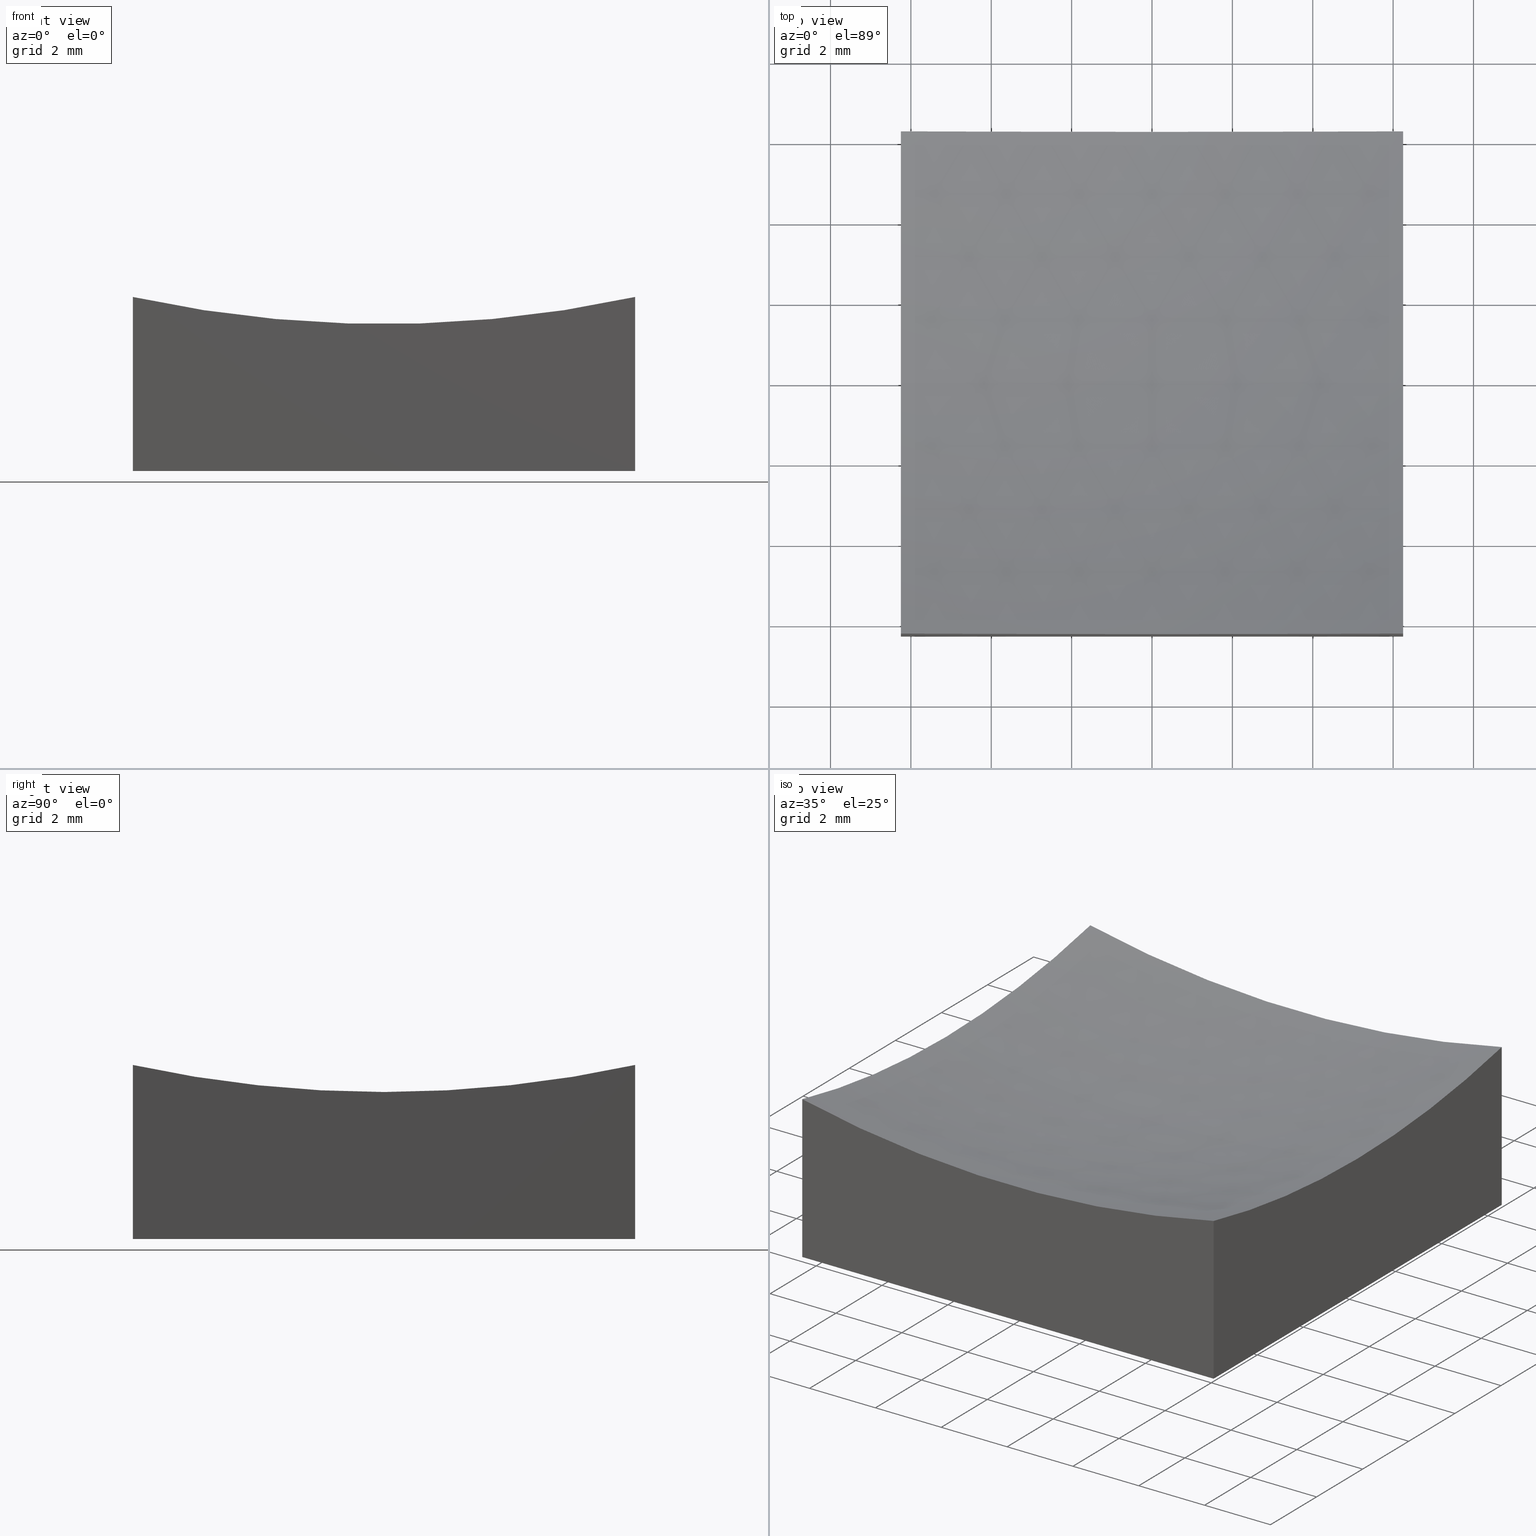
[diagram: canonical four-view strip — front | top / right | iso, engineering-drawing reading convention]
A machine part, canonical four-view strip (front | top / right | iso — engineering-drawing reading convention). The complete STEP part file that produces these views, byte-faithful:
ISO-10303-21;
HEADER;
FILE_DESCRIPTION (( 'STEP AP214' ),
    '1' );
FILE_NAME ('270012.STEP',
    '2020-06-01T08:23:23',
    ( '' ),
    ( '' ),
    'SwSTEP 2.0',
    'SolidWorks 2019',
    '' );
FILE_SCHEMA (( 'AUTOMOTIVE_DESIGN' ));
ENDSEC;

DATA;
#1 = DIRECTION ( 'NONE',  ( 0.0000000000000000000, 0.0000000000000000000, -1.000000000000000000 ) ) ;
#2 = EDGE_CURVE ( 'NONE', #167, #229, #179, .T. ) ;
#3 = DIRECTION ( 'NONE',  ( 1.000000000000000000, 0.0000000000000000000, 0.0000000000000000000 ) ) ;
#4 = APPLICATION_PROTOCOL_DEFINITION ( 'draft international standard', 'automotive_design', 1998, #97 ) ;
#5 = AXIS2_PLACEMENT_3D ( 'NONE', #204, #29, #31 ) ;
#6 = VERTEX_POINT ( 'NONE', #169 ) ;
#7 = ORIENTED_EDGE ( 'NONE', *, *, #115, .T. ) ;
#8 = EDGE_CURVE ( 'NONE', #167, #225, #51, .T. ) ;
#9 = CARTESIAN_POINT ( 'NONE',  ( -6.250000000000000000, 0.0000000000000000000, 33.00000000000000000 ) ) ;
#10 = CIRCLE ( 'NONE', #32, 30.00000000000000000 ) ;
#11 = CARTESIAN_POINT ( 'NONE',  ( -6.250000000000000000, 6.250000000000000888, 4.331637647050714079 ) ) ;
#12 = LINE ( 'NONE', #85, #96 ) ;
#13 = LINE ( 'NONE', #120, #200 ) ;
#14 = ORIENTED_EDGE ( 'NONE', *, *, #78, .T. ) ;
#15 = DIRECTION ( 'NONE',  ( 1.000000000000000000, 0.0000000000000000000, -0.0000000000000000000 ) ) ;
#16 =( NAMED_UNIT ( * ) PLANE_ANGLE_UNIT ( ) SI_UNIT ( $, .RADIAN. ) );
#17 = CARTESIAN_POINT ( 'NONE',  ( 6.250000000000000000, 6.250000000000000888, 10.00000000000000000 ) ) ;
#18 = FILL_AREA_STYLE_COLOUR ( '', #136 ) ;
#19 = EDGE_CURVE ( 'NONE', #243, #162, #12, .T. ) ;
#20 = AXIS2_PLACEMENT_3D ( 'NONE', #250, #109, #92 ) ;
#21 = VECTOR ( 'NONE', #231, 1000.000000000000000 ) ;
#22 = FACE_OUTER_BOUND ( 'NONE', #227, .T. ) ;
#23 = PRODUCT_CONTEXT ( 'NONE', #156, 'mechanical' ) ;
#24 = AXIS2_PLACEMENT_3D ( 'NONE', #91, #134, #214 ) ;
#25 = SURFACE_SIDE_STYLE ('',( #52 ) ) ;
#26 = AXIS2_PLACEMENT_3D ( 'NONE', #218, #199, #77 ) ;
#27 = ORIENTED_EDGE ( 'NONE', *, *, #224, .T. ) ;
#28 = STYLED_ITEM ( 'NONE', ( #159 ), #157 ) ;
#29 = DIRECTION ( 'NONE',  ( 1.000000000000000000, 0.0000000000000000000, -0.0000000000000000000 ) ) ;
#30 = ORIENTED_EDGE ( 'NONE', *, *, #57, .F. ) ;
#31 = DIRECTION ( 'NONE',  ( -0.0000000000000000000, 0.0000000000000000000, -1.000000000000000000 ) ) ;
#32 = AXIS2_PLACEMENT_3D ( 'NONE', #108, #198, #55 ) ;
#33 = CARTESIAN_POINT ( 'NONE',  ( -6.250000000000000000, -6.250000000000000888, 0.0000000000000000000 ) ) ;
#34 = AXIS2_PLACEMENT_3D ( 'NONE', #193, #15, #232 ) ;
#35 = COLOUR_RGB ( '',1.000000000000000000, 1.000000000000000000, 1.000000000000000000 ) ;
#36 = FACE_OUTER_BOUND ( 'NONE', #208, .T. ) ;
#37 = ORIENTED_EDGE ( 'NONE', *, *, #57, .T. ) ;
#38 = LINE ( 'NONE', #75, #116 ) ;
#39 = PRODUCT_DEFINITION ( 'δ֪', '', #123, #61 ) ;
#40 = CARTESIAN_POINT ( 'NONE',  ( 6.250000000000000000, 0.0000000000000000000, 33.00000000000000000 ) ) ;
#41 = CARTESIAN_POINT ( 'NONE',  ( -6.250000000000000000, 0.0000000000000000000, 33.00000000000000000 ) ) ;
#42 = CLOSED_SHELL ( 'NONE', ( #65, #119, #161, #164, #103, #45, #58 ) ) ;
#43 = AXIS2_PLACEMENT_3D ( 'NONE', #146, #211, #56 ) ;
#44 = VECTOR ( 'NONE', #187, 1000.000000000000000 ) ;
#45 = ADVANCED_FACE ( 'NONE', ( #245 ), #68, .T. ) ;
#46 = ADVANCED_BREP_SHAPE_REPRESENTATION ( '270012', ( #157, #236 ), #249 ) ;
#47 = SURFACE_SIDE_STYLE ('',( #147 ) ) ;
#48 = DIRECTION ( 'NONE',  ( 1.000000000000000000, 0.0000000000000000000, 0.0000000000000000000 ) ) ;
#49 = PRESENTATION_STYLE_ASSIGNMENT (( #226 ) ) ;
#50 = SPHERICAL_SURFACE ( 'NONE', #26, 30.00000000000000000 ) ;
#51 = LINE ( 'NONE', #17, #215 ) ;
#52 = SURFACE_STYLE_FILL_AREA ( #230 ) ;
#53 = DIRECTION ( 'NONE',  ( -0.0000000000000000000, 1.000000000000000000, 0.0000000000000000000 ) ) ;
#54 = AXIS2_PLACEMENT_3D ( 'NONE', #69, #110, #172 ) ;
#55 = DIRECTION ( 'NONE',  ( 0.0000000000000000000, 0.0000000000000000000, -1.000000000000000000 ) ) ;
#56 = DIRECTION ( 'NONE',  ( -0.0000000000000000000, 0.0000000000000000000, -1.000000000000000000 ) ) ;
#57 = EDGE_CURVE ( 'NONE', #243, #225, #135, .T. ) ;
#58 = ADVANCED_FACE ( 'NONE', ( #234 ), #217, .F. ) ;
#59 = VECTOR ( 'NONE', #246, 1000.000000000000000 ) ;
#60 = ORIENTED_EDGE ( 'NONE', *, *, #133, .T. ) ;
#61 = PRODUCT_DEFINITION_CONTEXT ( 'detailed design', #97, 'design' ) ;
#62 = ORIENTED_EDGE ( 'NONE', *, *, #115, .F. ) ;
#63 = UNCERTAINTY_MEASURE_WITH_UNIT (LENGTH_MEASURE( 1.000000000000000082E-05 ), #202, 'distance_accuracy_value', 'NONE');
#64 = APPLICATION_PROTOCOL_DEFINITION ( 'draft international standard', 'automotive_design', 1998, #156 ) ;
#65 = ADVANCED_FACE ( 'NONE', ( #22 ), #50, .F. ) ;
#66 = ORIENTED_EDGE ( 'NONE', *, *, #83, .T. ) ;
#67 =( NAMED_UNIT ( * ) SI_UNIT ( $, .STERADIAN. ) SOLID_ANGLE_UNIT ( ) );
#68 = PLANE ( 'NONE',  #24 ) ;
#69 = CARTESIAN_POINT ( 'NONE',  ( 4.041334437186266200E-15, 0.0000000000000000000, 33.00000000000000000 ) ) ;
#70 = CARTESIAN_POINT ( 'NONE',  ( 6.250000000000000000, 6.250000000000000888, 0.0000000000000000000 ) ) ;
#71 = ORIENTED_EDGE ( 'NONE', *, *, #174, .F. ) ;
#72 = DIRECTION ( 'NONE',  ( -0.0000000000000000000, -0.0000000000000000000, -1.000000000000000000 ) ) ;
#73 = DIRECTION ( 'NONE',  ( 1.000000000000000000, 0.0000000000000000000, -0.0000000000000000000 ) ) ;
#74 = EDGE_LOOP ( 'NONE', ( #80, #14, #221, #143, #248 ) ) ;
#75 = CARTESIAN_POINT ( 'NONE',  ( 6.250000000000000000, -6.250000000000000888, 10.00000000000000000 ) ) ;
#76 = DIRECTION ( 'NONE',  ( 0.0000000000000000000, 1.000000000000000000, 0.0000000000000000000 ) ) ;
#77 = DIRECTION ( 'NONE',  ( 1.000000000000000000, 0.0000000000000000000, 0.0000000000000000000 ) ) ;
#78 = EDGE_CURVE ( 'NONE', #121, #105, #38, .T. ) ;
#79 = VECTOR ( 'NONE', #175, 1000.000000000000000 ) ;
#80 = ORIENTED_EDGE ( 'NONE', *, *, #133, .F. ) ;
#81 = CIRCLE ( 'NONE', #90, 29.34173648576375726 ) ;
#82 = EDGE_CURVE ( 'NONE', #184, #244, #10, .T. ) ;
#83 = EDGE_CURVE ( 'NONE', #6, #162, #127, .T. ) ;
#84 = ORIENTED_EDGE ( 'NONE', *, *, #224, .F. ) ;
#85 = CARTESIAN_POINT ( 'NONE',  ( -6.250000000000000000, 6.250000000000000888, 0.0000000000000000000 ) ) ;
#86 = CARTESIAN_POINT ( 'NONE',  ( 6.250000000000000000, 6.250000000000000888, 0.0000000000000000000 ) ) ;
#87 = VERTEX_POINT ( 'NONE', #151 ) ;
#88 = DIRECTION ( 'NONE',  ( 1.000000000000000000, 0.0000000000000000000, -0.0000000000000000000 ) ) ;
#89 = CARTESIAN_POINT ( 'NONE',  ( -6.250000000000000000, 6.250000000000000888, 10.00000000000000000 ) ) ;
#90 = AXIS2_PLACEMENT_3D ( 'NONE', #41, #252, #1 ) ;
#91 = CARTESIAN_POINT ( 'NONE',  ( 0.0000000000000000000, 0.0000000000000000000, 0.0000000000000000000 ) ) ;
#92 = DIRECTION ( 'NONE',  ( 0.0000000000000000000, 0.0000000000000000000, 1.000000000000000000 ) ) ;
#93 = CARTESIAN_POINT ( 'NONE',  ( -6.250000000000000000, 6.250000000000000888, 0.0000000000000000000 ) ) ;
#94 = AXIS2_PLACEMENT_3D ( 'NONE', #40, #88, #170 ) ;
#95 =( NAMED_UNIT ( * ) SI_UNIT ( $, .STERADIAN. ) SOLID_ANGLE_UNIT ( ) );
#96 = VECTOR ( 'NONE', #168, 1000.000000000000000 ) ;
#97 = APPLICATION_CONTEXT ( 'automotive_design' ) ;
#98 = ORIENTED_EDGE ( 'NONE', *, *, #152, .F. ) ;
#99 =( GEOMETRIC_REPRESENTATION_CONTEXT ( 3 ) GLOBAL_UNCERTAINTY_ASSIGNED_CONTEXT ( ( #63 ) ) GLOBAL_UNIT_ASSIGNED_CONTEXT ( ( #202, #160, #183 ) ) REPRESENTATION_CONTEXT ( 'NONE', 'WORKASPACE' ) );
#100 = DIRECTION ( 'NONE',  ( 0.0000000000000000000, -0.0000000000000000000, 1.000000000000000000 ) ) ;
#101 = PRODUCT ( '270012', '270012', '', ( #23 ) ) ;
#102 = ORIENTED_EDGE ( 'NONE', *, *, #111, .T. ) ;
#103 = ADVANCED_FACE ( 'NONE', ( #176 ), #196, .T. ) ;
#104 = PLANE ( 'NONE',  #5 ) ;
#105 = VERTEX_POINT ( 'NONE', #131 ) ;
#106 = CARTESIAN_POINT ( 'NONE',  ( -6.250000000000000000, 6.250000000000000888, 10.00000000000000000 ) ) ;
#107 = ORIENTED_EDGE ( 'NONE', *, *, #78, .F. ) ;
#108 = CARTESIAN_POINT ( 'NONE',  ( 4.041334437186266200E-15, 0.0000000000000000000, 33.00000000000000000 ) ) ;
#109 = DIRECTION ( 'NONE',  ( 0.0000000000000000000, 1.000000000000000000, 0.0000000000000000000 ) ) ;
#110 = DIRECTION ( 'NONE',  ( 1.224646799147353207E-16, 1.000000000000000000, -2.794487877293521161E-33 ) ) ;
#111 = EDGE_CURVE ( 'NONE', #184, #87, #154, .T. ) ;
#112 = DIRECTION ( 'NONE',  ( 0.0000000000000000000, -0.0000000000000000000, 1.000000000000000000 ) ) ;
#113 = PRODUCT_DEFINITION_SHAPE ( 'NONE', 'NONE',  #39 ) ;
#114 = MECHANICAL_DESIGN_GEOMETRIC_PRESENTATION_REPRESENTATION (  '', ( #177 ), #125 ) ;
#115 = EDGE_CURVE ( 'NONE', #6, #87, #81, .T. ) ;
#116 = VECTOR ( 'NONE', #72, 1000.000000000000000 ) ;
#117 = AXIS2_PLACEMENT_3D ( 'NONE', #106, #76, #112 ) ;
#118 = ORIENTED_EDGE ( 'NONE', *, *, #2, .T. ) ;
#119 = ADVANCED_FACE ( 'NONE', ( #155 ), #235, .T. ) ;
#120 = CARTESIAN_POINT ( 'NONE',  ( -6.250000000000000000, -6.250000000000000888, 0.0000000000000000000 ) ) ;
#121 = VERTEX_POINT ( 'NONE', #216 ) ;
#122 = LINE ( 'NONE', #70, #21 ) ;
#123 = PRODUCT_DEFINITION_FORMATION_WITH_SPECIFIED_SOURCE ( '�κ�', '', #101, .NOT_KNOWN. ) ;
#124 = ORIENTED_EDGE ( 'NONE', *, *, #140, .T. ) ;
#125 =( GEOMETRIC_REPRESENTATION_CONTEXT ( 3 ) GLOBAL_UNCERTAINTY_ASSIGNED_CONTEXT ( ( #247 ) ) GLOBAL_UNIT_ASSIGNED_CONTEXT ( ( #219, #173, #95 ) ) REPRESENTATION_CONTEXT ( 'NONE', 'WORKASPACE' ) );
#126 = EDGE_LOOP ( 'NONE', ( #37, #148, #71, #213 ) ) ;
#127 = LINE ( 'NONE', #149, #59 ) ;
#128 = CARTESIAN_POINT ( 'NONE',  ( 6.250000000000000000, 6.250000000000000888, 4.331637647050714079 ) ) ;
#129 = ORIENTED_EDGE ( 'NONE', *, *, #152, .T. ) ;
#130 = FILL_AREA_STYLE ('',( #144 ) ) ;
#131 = CARTESIAN_POINT ( 'NONE',  ( 6.250000000000000000, -6.250000000000000888, 0.0000000000000000000 ) ) ;
#132 = SHAPE_DEFINITION_REPRESENTATION ( #113, #46 ) ;
#133 = EDGE_CURVE ( 'NONE', #121, #244, #138, .T. ) ;
#134 = DIRECTION ( 'NONE',  ( 0.0000000000000000000, 0.0000000000000000000, -1.000000000000000000 ) ) ;
#135 = LINE ( 'NONE', #93, #79 ) ;
#136 = COLOUR_RGB ( '',1.000000000000000000, 1.000000000000000000, 1.000000000000000000 ) ;
#137 = CIRCLE ( 'NONE', #240, 29.34173648576375726 ) ;
#138 = CIRCLE ( 'NONE', #34, 29.34173648576375726 ) ;
#139 = ORIENTED_EDGE ( 'NONE', *, *, #19, .T. ) ;
#140 = EDGE_CURVE ( 'NONE', #244, #167, #207, .T. ) ;
#141 = EDGE_LOOP ( 'NONE', ( #241, #7, #192, #27, #139 ) ) ;
#142 = ORIENTED_EDGE ( 'NONE', *, *, #82, .T. ) ;
#143 = ORIENTED_EDGE ( 'NONE', *, *, #8, .F. ) ;
#144 = FILL_AREA_STYLE_COLOUR ( '', #35 ) ;
#145 = DIRECTION ( 'NONE',  ( -0.0000000000000000000, -0.0000000000000000000, -1.000000000000000000 ) ) ;
#146 = CARTESIAN_POINT ( 'NONE',  ( 6.250000000000000000, 6.250000000000000888, 10.00000000000000000 ) ) ;
#147 = SURFACE_STYLE_FILL_AREA ( #130 ) ;
#148 = ORIENTED_EDGE ( 'NONE', *, *, #212, .T. ) ;
#149 = CARTESIAN_POINT ( 'NONE',  ( -6.250000000000000000, -6.250000000000000888, 10.00000000000000000 ) ) ;
#150 =( LENGTH_UNIT ( ) NAMED_UNIT ( * ) SI_UNIT ( .MILLI., .METRE. ) );
#151 = CARTESIAN_POINT ( 'NONE',  ( -6.250000000000000000, 7.654042494670961551E-16, 3.658263514236247627 ) ) ;
#152 = EDGE_CURVE ( 'NONE', #121, #6, #239, .T. ) ;
#153 = CARTESIAN_POINT ( 'NONE',  ( 4.041334437186266200E-15, 0.0000000000000000000, 33.00000000000000000 ) ) ;
#154 = CIRCLE ( 'NONE', #54, 30.00000000000000000 ) ;
#155 = FACE_OUTER_BOUND ( 'NONE', #163, .T. ) ;
#156 = APPLICATION_CONTEXT ( 'automotive_design' ) ;
#157 = MANIFOLD_SOLID_BREP ( '�г�-��ת2', #42 ) ;
#158 = MECHANICAL_DESIGN_GEOMETRIC_PRESENTATION_REPRESENTATION (  '', ( #28 ), #99 ) ;
#159 = PRESENTATION_STYLE_ASSIGNMENT (( #237 ) ) ;
#160 =( NAMED_UNIT ( * ) PLANE_ANGLE_UNIT ( ) SI_UNIT ( $, .RADIAN. ) );
#161 = ADVANCED_FACE ( 'NONE', ( #209 ), #104, .F. ) ;
#162 = VERTEX_POINT ( 'NONE', #33 ) ;
#163 = EDGE_LOOP ( 'NONE', ( #165, #220, #30, #84 ) ) ;
#164 = ADVANCED_FACE ( 'NONE', ( #36 ), #222, .F. ) ;
#165 = ORIENTED_EDGE ( 'NONE', *, *, #2, .F. ) ;
#166 = CARTESIAN_POINT ( 'NONE',  ( -6.250000000000000000, 6.250000000000000888, 0.0000000000000000000 ) ) ;
#167 = VERTEX_POINT ( 'NONE', #128 ) ;
#168 = DIRECTION ( 'NONE',  ( 0.0000000000000000000, -1.000000000000000000, 0.0000000000000000000 ) ) ;
#169 = CARTESIAN_POINT ( 'NONE',  ( -6.250000000000000000, -6.250000000000000888, 4.331637647050714079 ) ) ;
#170 = DIRECTION ( 'NONE',  ( 0.0000000000000000000, 0.0000000000000000000, -1.000000000000000000 ) ) ;
#171 = DIRECTION ( 'NONE',  ( 0.0000000000000000000, 1.000000000000000000, 0.0000000000000000000 ) ) ;
#172 = DIRECTION ( 'NONE',  ( -1.000000000000000000, 1.224646799147352961E-16, 0.0000000000000000000 ) ) ;
#173 =( NAMED_UNIT ( * ) PLANE_ANGLE_UNIT ( ) SI_UNIT ( $, .RADIAN. ) );
#174 = EDGE_CURVE ( 'NONE', #162, #105, #13, .T. ) ;
#175 = DIRECTION ( 'NONE',  ( 1.000000000000000000, 0.0000000000000000000, 0.0000000000000000000 ) ) ;
#176 = FACE_OUTER_BOUND ( 'NONE', #74, .T. ) ;
#177 = STYLED_ITEM ( 'NONE', ( #49 ), #46 ) ;
#178 = CARTESIAN_POINT ( 'NONE',  ( 0.0000000000000000000, 0.0000000000000000000, 0.0000000000000000000 ) ) ;
#179 = CIRCLE ( 'NONE', #180, 29.34173648576375726 ) ;
#180 = AXIS2_PLACEMENT_3D ( 'NONE', #210, #171, #190 ) ;
#181 = AXIS2_PLACEMENT_3D ( 'NONE', #191, #206, #100 ) ;
#182 = ORIENTED_EDGE ( 'NONE', *, *, #174, .T. ) ;
#183 =( NAMED_UNIT ( * ) SI_UNIT ( $, .STERADIAN. ) SOLID_ANGLE_UNIT ( ) );
#184 = VERTEX_POINT ( 'NONE', #185 ) ;
#185 = CARTESIAN_POINT ( 'NONE',  ( 5.193742880002045651E-15, 0.0000000000000000000, 3.000000000000002665 ) ) ;
#186 = ORIENTED_EDGE ( 'NONE', *, *, #111, .F. ) ;
#187 = DIRECTION ( 'NONE',  ( -0.0000000000000000000, -0.0000000000000000000, -1.000000000000000000 ) ) ;
#188 = ORIENTED_EDGE ( 'NONE', *, *, #223, .F. ) ;
#189 = LINE ( 'NONE', #89, #44 ) ;
#190 = DIRECTION ( 'NONE',  ( 0.0000000000000000000, 0.0000000000000000000, 1.000000000000000000 ) ) ;
#191 = CARTESIAN_POINT ( 'NONE',  ( -6.250000000000000000, -6.250000000000000888, 10.00000000000000000 ) ) ;
#192 = ORIENTED_EDGE ( 'NONE', *, *, #223, .T. ) ;
#193 = CARTESIAN_POINT ( 'NONE',  ( 6.250000000000000000, 0.0000000000000000000, 33.00000000000000000 ) ) ;
#194 = DIRECTION ( 'NONE',  ( 0.0000000000000000000, 0.0000000000000000000, -1.000000000000000000 ) ) ;
#195 = ORIENTED_EDGE ( 'NONE', *, *, #82, .F. ) ;
#196 = PLANE ( 'NONE',  #43 ) ;
#197 = DIRECTION ( 'NONE',  ( 1.000000000000000000, 0.0000000000000000000, 0.0000000000000000000 ) ) ;
#198 = DIRECTION ( 'NONE',  ( 0.0000000000000000000, -1.000000000000000000, -0.0000000000000000000 ) ) ;
#199 = DIRECTION ( 'NONE',  ( -0.0000000000000000000, 1.000000000000000000, 0.0000000000000000000 ) ) ;
#200 = VECTOR ( 'NONE', #48, 1000.000000000000000 ) ;
#201 = DIRECTION ( 'NONE',  ( 0.0000000000000000000, 0.0000000000000000000, 1.000000000000000000 ) ) ;
#202 =( LENGTH_UNIT ( ) NAMED_UNIT ( * ) SI_UNIT ( .MILLI., .METRE. ) );
#203 = UNCERTAINTY_MEASURE_WITH_UNIT (LENGTH_MEASURE( 1.000000000000000082E-05 ), #150, 'distance_accuracy_value', 'NONE');
#204 = CARTESIAN_POINT ( 'NONE',  ( -6.250000000000000000, 6.250000000000000888, 10.00000000000000000 ) ) ;
#205 = PRODUCT_RELATED_PRODUCT_CATEGORY ( 'part', '', ( #101 ) ) ;
#206 = DIRECTION ( 'NONE',  ( 0.0000000000000000000, 1.000000000000000000, 0.0000000000000000000 ) ) ;
#207 = CIRCLE ( 'NONE', #94, 29.34173648576375726 ) ;
#208 = EDGE_LOOP ( 'NONE', ( #107, #129, #66, #182 ) ) ;
#209 = FACE_OUTER_BOUND ( 'NONE', #141, .T. ) ;
#210 = CARTESIAN_POINT ( 'NONE',  ( 4.041334437186266200E-15, 6.250000000000000888, 33.00000000000000000 ) ) ;
#211 = DIRECTION ( 'NONE',  ( 1.000000000000000000, 0.0000000000000000000, -0.0000000000000000000 ) ) ;
#212 = EDGE_CURVE ( 'NONE', #225, #105, #122, .T. ) ;
#213 = ORIENTED_EDGE ( 'NONE', *, *, #19, .F. ) ;
#214 = DIRECTION ( 'NONE',  ( -1.000000000000000000, 0.0000000000000000000, -0.0000000000000000000 ) ) ;
#215 = VECTOR ( 'NONE', #145, 1000.000000000000000 ) ;
#216 = CARTESIAN_POINT ( 'NONE',  ( 6.250000000000000000, -6.250000000000000888, 4.331637647050714079 ) ) ;
#217 = SPHERICAL_SURFACE ( 'NONE', #233, 30.00000000000000000 ) ;
#218 = CARTESIAN_POINT ( 'NONE',  ( 4.041334437186266200E-15, 0.0000000000000000000, 33.00000000000000000 ) ) ;
#219 =( LENGTH_UNIT ( ) NAMED_UNIT ( * ) SI_UNIT ( .MILLI., .METRE. ) );
#220 = ORIENTED_EDGE ( 'NONE', *, *, #8, .T. ) ;
#221 = ORIENTED_EDGE ( 'NONE', *, *, #212, .F. ) ;
#222 = PLANE ( 'NONE',  #181 ) ;
#223 = EDGE_CURVE ( 'NONE', #87, #229, #137, .T. ) ;
#224 = EDGE_CURVE ( 'NONE', #229, #243, #189, .T. ) ;
#225 = VERTEX_POINT ( 'NONE', #86 ) ;
#226 = SURFACE_STYLE_USAGE ( .BOTH. , #47 ) ;
#227 = EDGE_LOOP ( 'NONE', ( #195, #102, #62, #98, #60 ) ) ;
#228 = PRESENTATION_LAYER_ASSIGNMENT (  '', '', ( #177 ) ) ;
#229 = VERTEX_POINT ( 'NONE', #11 ) ;
#230 = FILL_AREA_STYLE ('',( #18 ) ) ;
#231 = DIRECTION ( 'NONE',  ( 0.0000000000000000000, -1.000000000000000000, 0.0000000000000000000 ) ) ;
#232 = DIRECTION ( 'NONE',  ( 0.0000000000000000000, 0.0000000000000000000, -1.000000000000000000 ) ) ;
#233 = AXIS2_PLACEMENT_3D ( 'NONE', #153, #53, #3 ) ;
#234 = FACE_OUTER_BOUND ( 'NONE', #242, .T. ) ;
#235 = PLANE ( 'NONE',  #117 ) ;
#236 = AXIS2_PLACEMENT_3D ( 'NONE', #178, #201, #197 ) ;
#237 = SURFACE_STYLE_USAGE ( .BOTH. , #25 ) ;
#238 = PRESENTATION_LAYER_ASSIGNMENT (  '', '', ( #28 ) ) ;
#239 = CIRCLE ( 'NONE', #20, 29.34173648576375726 ) ;
#240 = AXIS2_PLACEMENT_3D ( 'NONE', #9, #73, #194 ) ;
#241 = ORIENTED_EDGE ( 'NONE', *, *, #83, .F. ) ;
#242 = EDGE_LOOP ( 'NONE', ( #186, #142, #124, #118, #188 ) ) ;
#243 = VERTEX_POINT ( 'NONE', #166 ) ;
#244 = VERTEX_POINT ( 'NONE', #251 ) ;
#245 = FACE_OUTER_BOUND ( 'NONE', #126, .T. ) ;
#246 = DIRECTION ( 'NONE',  ( -0.0000000000000000000, -0.0000000000000000000, -1.000000000000000000 ) ) ;
#247 = UNCERTAINTY_MEASURE_WITH_UNIT (LENGTH_MEASURE( 1.000000000000000082E-05 ), #219, 'distance_accuracy_value', 'NONE');
#248 = ORIENTED_EDGE ( 'NONE', *, *, #140, .F. ) ;
#249 =( GEOMETRIC_REPRESENTATION_CONTEXT ( 3 ) GLOBAL_UNCERTAINTY_ASSIGNED_CONTEXT ( ( #203 ) ) GLOBAL_UNIT_ASSIGNED_CONTEXT ( ( #150, #16, #67 ) ) REPRESENTATION_CONTEXT ( 'NONE', 'WORKASPACE' ) );
#250 = CARTESIAN_POINT ( 'NONE',  ( 4.041334437186266200E-15, -6.250000000000000888, 33.00000000000000000 ) ) ;
#251 = CARTESIAN_POINT ( 'NONE',  ( 6.250000000000000000, 0.0000000000000000000, 3.658263514236247627 ) ) ;
#252 = DIRECTION ( 'NONE',  ( 1.000000000000000000, 0.0000000000000000000, -0.0000000000000000000 ) ) ;
ENDSEC;
END-ISO-10303-21;
